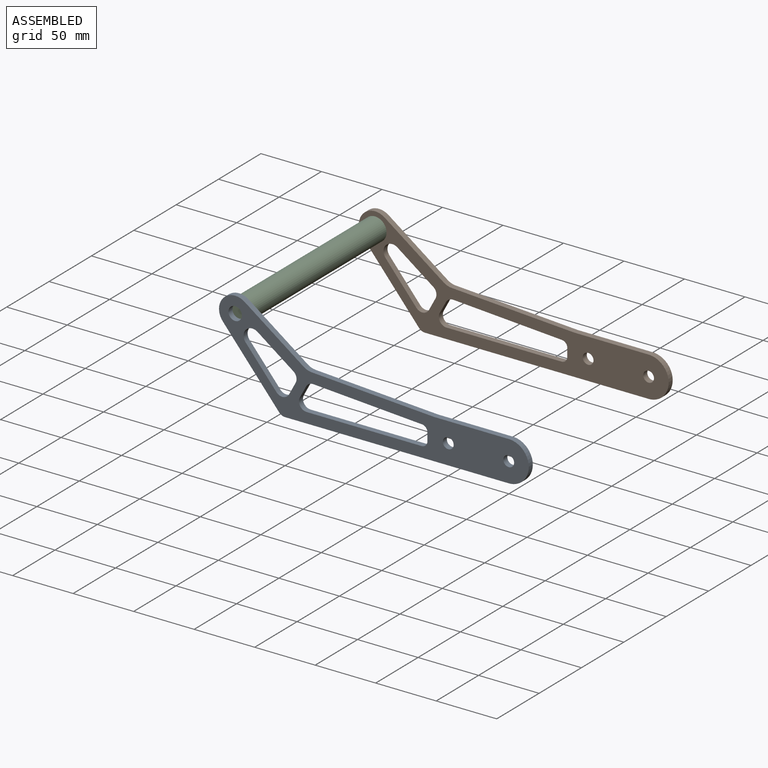
[diagram: assembled view]
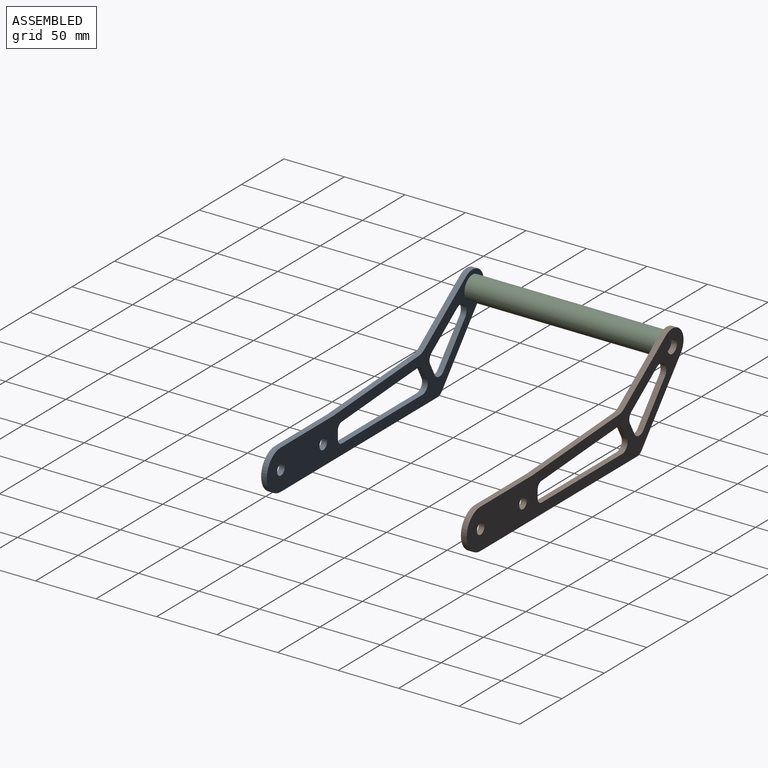
[diagram: assembled view, second angle]
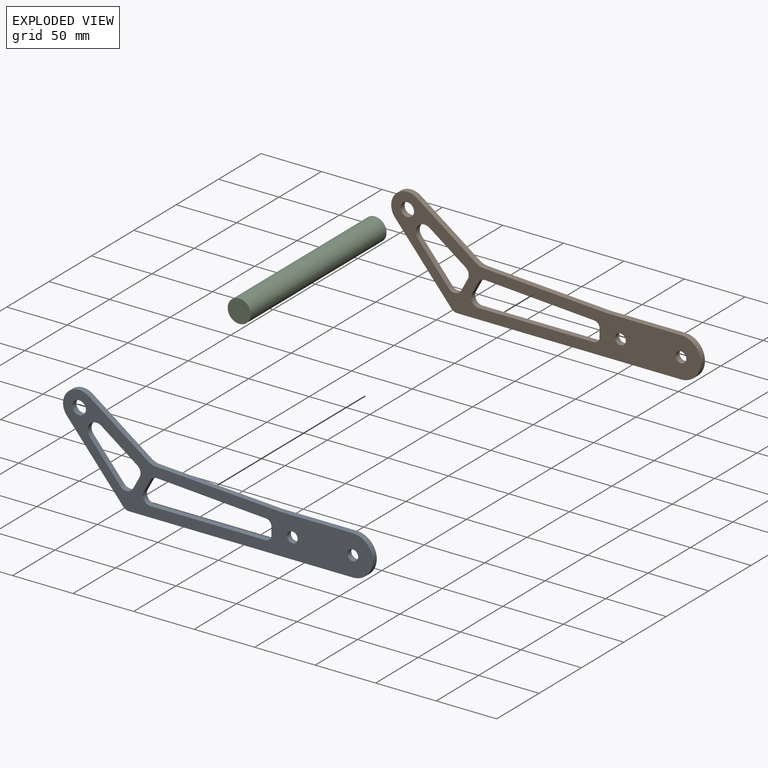
[diagram: exploded view]
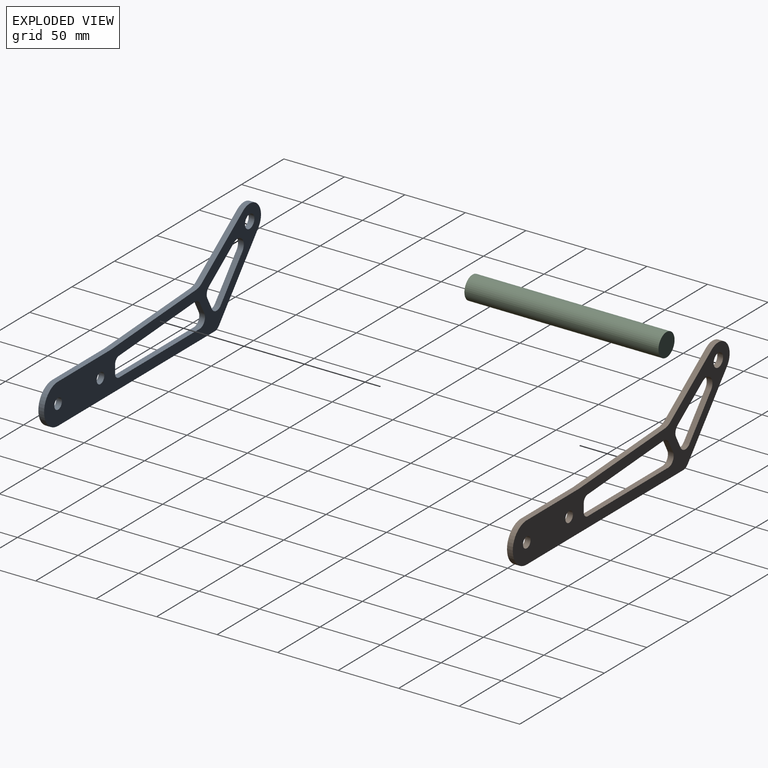
[diagram: exploded view, second angle]
ASSEMBLY  parts=3 mates=2
PART A: 29 faces, bbox 256x4.8x79.7 mm
  f0: plane 55.47x46.57mm, normal (-0.77,0,-0.64), area 344mm2, adj f1,f26,f27,f28
  f1: cylinder r=6.35mm len=4.86mm, axis (0,1,0), area 26.3mm2, adj f0,f2,f27,f28
  f2: plane 183.89x4.75mm, normal (0,0,-1), area 873.4mm2, adj f1,f3,f27,f28
  f3: cylinder r=16.57mm len=33.11mm, axis (0,1,0), area 247.2mm2, adj f2,f4,f27,f28
  f4: plane 62.05x4.75mm, normal (0,0,1), area 294.7mm2, adj f3,f5,f27,f28
  f5: cylinder r=12.7mm len=4.75mm, axis (0,1,0), area 3.7mm2, adj f4,f6,f27,f28
  f6: plane 100.95x6.26mm, normal (0.06,0,1), area 480.4mm2, adj f5,f7,f27,f28
  f7: cylinder r=12.7mm len=6.67mm, axis (0,1,0), area 34.1mm2, adj f6,f8,f27,f28
  f8: plane 48.75x35.36mm, normal (0.59,0,0.81), area 286.1mm2, adj f7,f26,f27,f28
  f9: cylinder r=6.35mm len=6.01mm, axis (0,1,0), area 34.5mm2, adj f10,f21,f27,f28
  f10: plane 89.76x5.97mm, normal (-0.07,0,-1), area 427.3mm2, adj f9,f11,f27,f28
  f11: cylinder r=4.75mm len=4.75mm, axis (0,1,0), area 33.9mm2, adj f10,f12,f27,f28
  f12: plane 6.8x4.75mm, normal (-1,0,0), area 32.3mm2, adj f11,f13,f27,f28
  f13: cylinder r=4.75mm len=4.75mm, axis (0,1,0), area 35.4mm2, adj f12,f14,f27,f28
  f14: plane 95.02x4.75mm, normal (0,0,1), area 451.3mm2, adj f13,f15,f27,f28
  f15: cylinder r=6.35mm len=9.36mm, axis (0,1,0), area 62.3mm2, adj f14,f21,f27,f28
  f16: cylinder r=7.23mm len=11.88mm, axis (0,1,0), area 99.5mm2, adj f17,f25,f27,f28
  f17: plane 29.65x21.51mm, normal (-0.59,0,-0.81), area 174mm2, adj f16,f18,f27,f28
  f18: cylinder r=6.35mm len=8.15mm, axis (0,1,0), area 43.3mm2, adj f17,f19,f27,f28
  f19: plane 10.06x5.41mm, normal (-0.88,0,0.47), area 54.2mm2, adj f18,f20,f27,f28
  f20: cylinder r=6.35mm len=10.46mm, axis (0,1,0), area 58.8mm2, adj f19,f25,f27,f28
  f21: plane 9.58x5.15mm, normal (0.88,0,-0.47), area 51.6mm2, adj f9,f15,f27,f28
  f22: cylinder r=4.45mm len=8.89mm, axis (0,1,0), area 132.7mm2, adj f27,f28
  f23: cylinder r=4.45mm len=8.89mm, axis (0,1,0), area 132.7mm2, adj f27,f28
  f24: cylinder r=5.55mm len=11.1mm, axis (0,1,0), area 165.6mm2, adj f27,f28
  f25: plane 30.29x25.43mm, normal (0.77,0,0.64), area 187.9mm2, adj f16,f20,f27,f28
  f26: cylinder r=13.35mm len=21.93mm, axis (0,1,0), area 183.7mm2, adj f0,f8,f27,f28
  f27: plane 255.99x79.7mm, normal (0,-1,0), area 6201.4mm2, adj f0,f1,f2,f3,f4,f5,f6,f7
  f28: plane 255.99x79.7mm, normal (0,1,0), area 6201.4mm2, adj f0,f1,f2,f3,f4,f5,f6,f7
PART B: same geometry as A
PART C: 3 faces, bbox 19.1x160.3x19.1 mm
  f0: cylinder r=9.53mm len=160.32mm, axis (0,1,0), area 9595mm2, adj f1,f2
  f1: plane 19.05x19.05mm, normal (0,-1,0), area 285mm2, adj f0
  f2: plane 19.05x19.05mm, normal (0,1,0), area 285mm2, adj f0
PLACE A t=(25.63,-139.97,-30.77)mm
PLACE B t=(25.63,25.1,-30.77)mm
PLACE C rot(axis=(1,0,0),180deg) t=(-29.87,-139.97,-12.83)mm
MATE fastened C.f0 <-> B.f24  axis (0,1,0) through (-29.87,20.35,-12.83)mm
MATE fastened A.f24 <-> C.f0  axis (0,1,0) through (-29.87,-139.97,-12.83)mm
